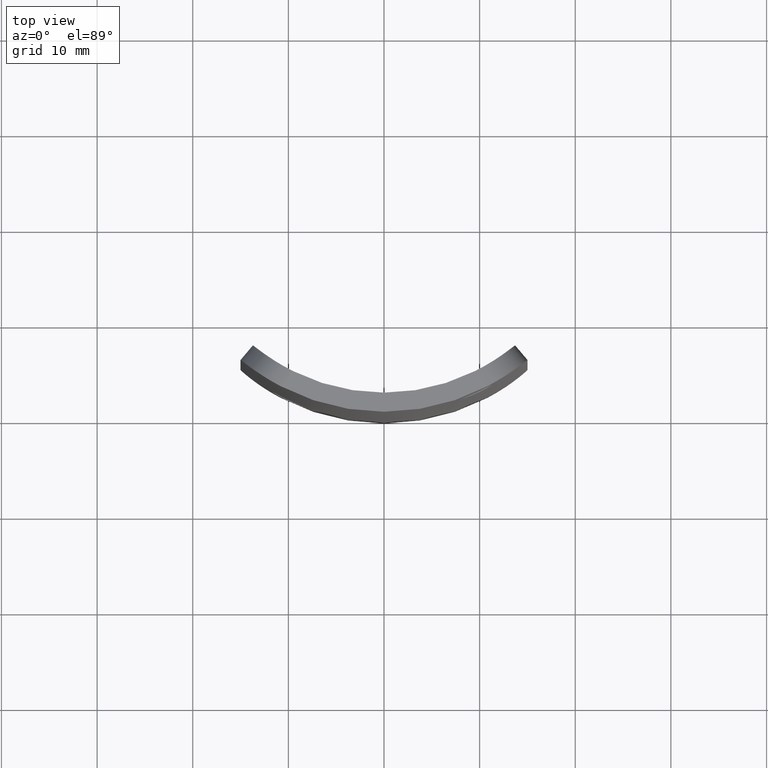
[diagram: clean part render]
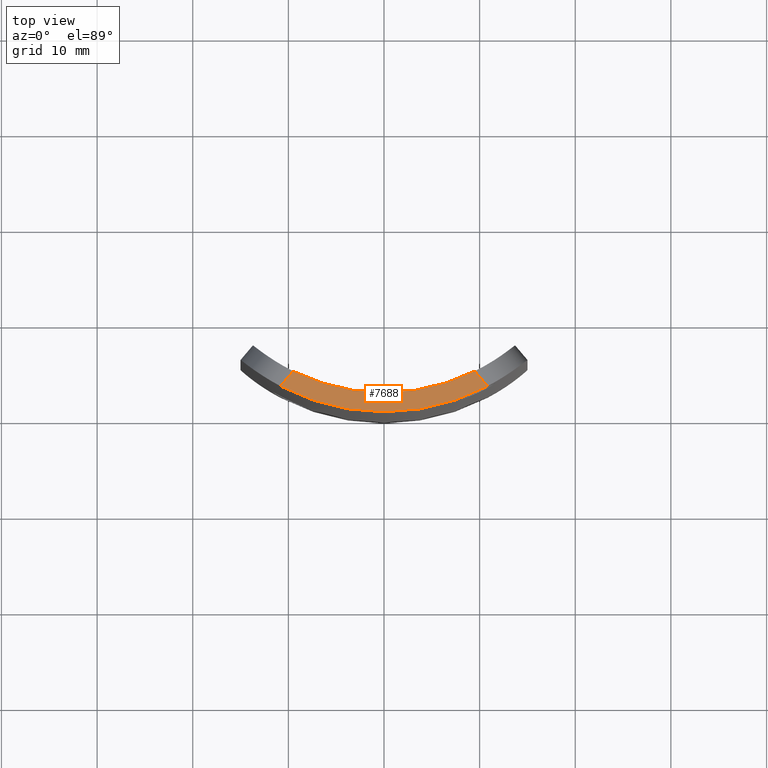
[diagram: same view with one face highlighted and labeled with its STEP entity id]
A machine part, top view. The second image highlights one B-rep face of the part: STEP entity #7688.
In plain terms, the highlighted planar face has unit normal (0, 0, 1).
Its self-contained STEP definition (entity closure, byte-faithful):
#228 = CARTESIAN_POINT ( 'NONE',  ( 9.505870140935250800, 4.250635027429662000, 35.00000000000000000 ) ) ;
#665 = CARTESIAN_POINT ( 'NONE',  ( 0.0000000000000000000, 23.19999999999999900, 35.00000000000000000 ) ) ;
#838 = DIRECTION ( 'NONE',  ( 0.0000000000000000000, 0.0000000000000000000, 1.000000000000000000 ) ) ;
#1010 = EDGE_LOOP ( 'NONE', ( #11513, #11452, #1298, #4472 ) ) ;
#1137 = DIRECTION ( 'NONE',  ( 1.000000000000000000, 0.0000000000000000000, -0.0000000000000000000 ) ) ;
#1298 = ORIENTED_EDGE ( 'NONE', *, *, #3329, .T. ) ;
#1692 = DIRECTION ( 'NONE',  ( 1.000000000000000000, 0.0000000000000000000, 0.0000000000000000000 ) ) ;
#1814 = CIRCLE ( 'NONE', #6909, 23.19999999999999900 ) ;
#2616 = CARTESIAN_POINT ( 'NONE',  ( 0.0000000000000000000, 23.19999999999999900, 35.00000000000000000 ) ) ;
#2902 = AXIS2_PLACEMENT_3D ( 'NONE', #665, #3433, #5153 ) ;
#3178 = EDGE_CURVE ( 'NONE', #8106, #5100, #11362, .T. ) ;
#3329 = EDGE_CURVE ( 'NONE', #4317, #8106, #4062, .T. ) ;
#3433 = DIRECTION ( 'NONE',  ( -0.0000000000000000000, -0.0000000000000000000, -1.000000000000000000 ) ) ;
#3736 = DIRECTION ( 'NONE',  ( -0.6465517241379309400, 0.7628701514768215800, 0.0000000000000000000 ) ) ;
#3834 = DIRECTION ( 'NONE',  ( -0.6465517241379309400, -0.7628701514768215800, 0.0000000000000000000 ) ) ;
#4062 = CIRCLE ( 'NONE', #2902, 21.19999999999999900 ) ;
#4301 = LINE ( 'NONE', #7899, #6802 ) ;
#4317 = VERTEX_POINT ( 'NONE', #228 ) ;
#4472 = ORIENTED_EDGE ( 'NONE', *, *, #3178, .T. ) ;
#4727 = DIRECTION ( 'NONE',  ( 0.0000000000000000000, 0.0000000000000000000, 1.000000000000000000 ) ) ;
#5100 = VERTEX_POINT ( 'NONE', #5920 ) ;
#5153 = DIRECTION ( 'NONE',  ( 1.000000000000000000, 0.0000000000000000000, 0.0000000000000000000 ) ) ;
#5179 = CARTESIAN_POINT ( 'NONE',  ( 10.83314977002181200, 2.684570049343922200, 35.00000000000000000 ) ) ;
#5920 = CARTESIAN_POINT ( 'NONE',  ( -10.83314977002181200, 2.684570049343922200, 35.00000000000000000 ) ) ;
#6359 = CARTESIAN_POINT ( 'NONE',  ( -11.18564924261589500, 2.268653865048077200, 35.00000000000000000 ) ) ;
#6574 = VERTEX_POINT ( 'NONE', #5179 ) ;
#6611 = EDGE_CURVE ( 'NONE', #5100, #6574, #1814, .T. ) ;
#6802 = VECTOR ( 'NONE', #3736, 1000.000000000000200 ) ;
#6836 = VECTOR ( 'NONE', #3834, 1000.000000000000200 ) ;
#6909 = AXIS2_PLACEMENT_3D ( 'NONE', #2616, #838, #1692 ) ;
#7353 = CARTESIAN_POINT ( 'NONE',  ( 0.0000000000000000000, 23.19999999999999900, 35.00000000000000000 ) ) ;
#7429 = FACE_OUTER_BOUND ( 'NONE', #1010, .T. ) ;
#7688 = ADVANCED_FACE ( 'NONE', ( #7429 ), #8215, .T. ) ;
#7899 = CARTESIAN_POINT ( 'NONE',  ( 9.892545794340033900, 3.794394168001719700, 35.00000000000000000 ) ) ;
#8106 = VERTEX_POINT ( 'NONE', #9880 ) ;
#8215 = PLANE ( 'NONE',  #11000 ) ;
#9880 = CARTESIAN_POINT ( 'NONE',  ( -9.505870140935250800, 4.250635027429662000, 35.00000000000000000 ) ) ;
#11000 = AXIS2_PLACEMENT_3D ( 'NONE', #7353, #4727, #1137 ) ;
#11021 = EDGE_CURVE ( 'NONE', #6574, #4317, #4301, .T. ) ;
#11362 = LINE ( 'NONE', #6359, #6836 ) ;
#11452 = ORIENTED_EDGE ( 'NONE', *, *, #11021, .T. ) ;
#11513 = ORIENTED_EDGE ( 'NONE', *, *, #6611, .T. ) ;